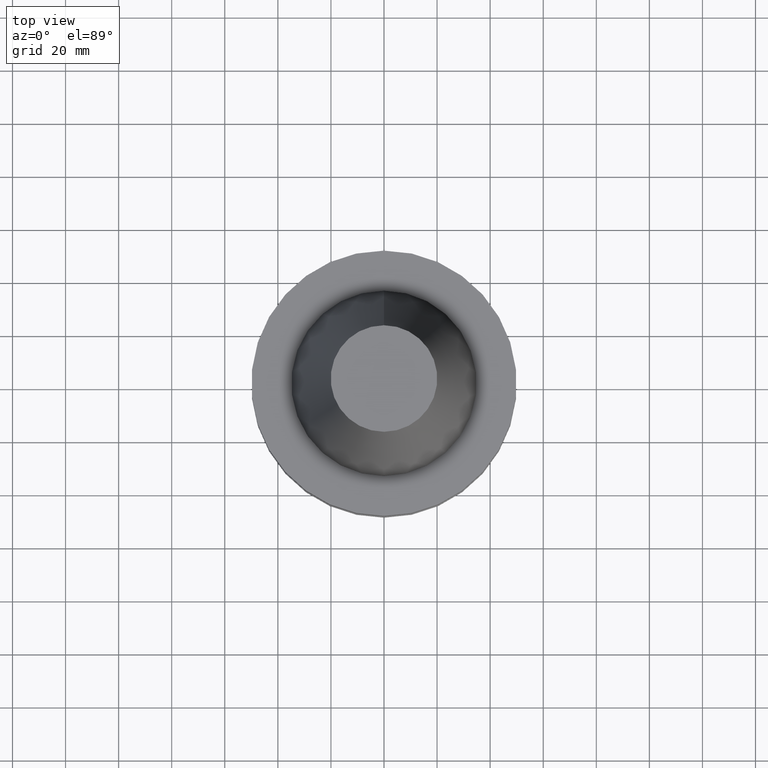
[diagram: clean part render]
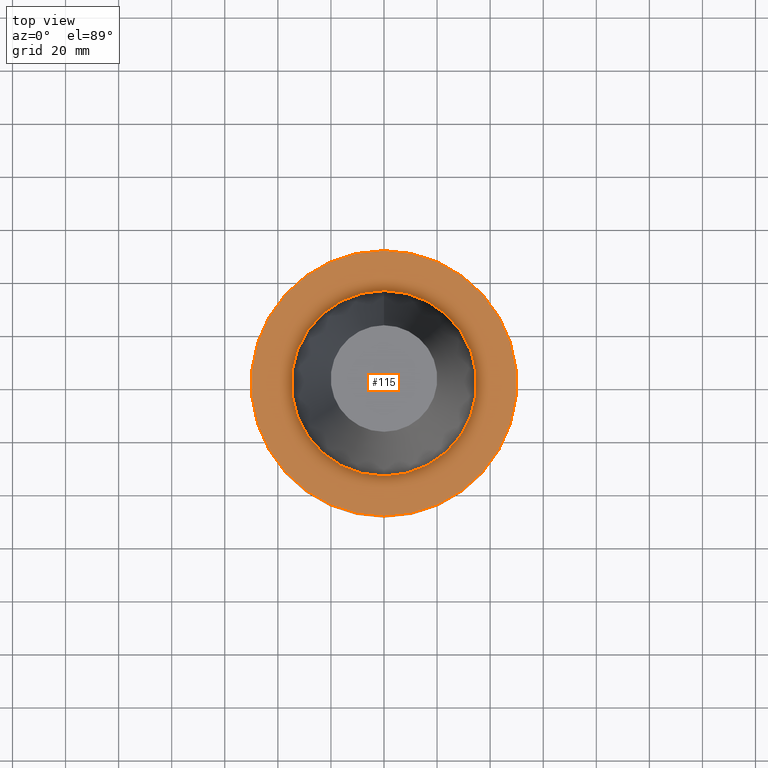
[diagram: same view with one face highlighted and labeled with its STEP entity id]
A machine part, top view. The second image highlights one B-rep face of the part: STEP entity #115.
In plain terms, the highlighted planar face has unit normal (-0, -0, 1).
Its self-contained STEP definition (entity closure, byte-faithful):
#115=ADVANCED_FACE('Unnamed[1]',(#262,#263),#264,.T.);
#122=EDGE_CURVE('Unnamed[1]',#273,#273,#274,.T.);
#158=EDGE_CURVE('Unnamed[1]',#328,#328,#329,.T.);
#262=FACE_BOUND('',#452,.T.);
#263=FACE_OUTER_BOUND('',#453,.T.);
#264=PLANE('',#454);
#273=VERTEX_POINT('',#466);
#274=CIRCLE('',#467,34.925);
#328=VERTEX_POINT('',#534);
#329=CIRCLE('',#535,50.0);
#452=EDGE_LOOP('',(#647));
#453=EDGE_LOOP('',(#648));
#454=AXIS2_PLACEMENT_3D('',#649,#650,#651);
#466=CARTESIAN_POINT('',(9.18485099360511E-017,34.925,-1.5));
#467=AXIS2_PLACEMENT_3D('',#660,#661,#662);
#534=CARTESIAN_POINT('',(9.18485099360509E-017,50.0,-1.49999999999999));
#535=AXIS2_PLACEMENT_3D('',#720,#721,#722);
#647=ORIENTED_EDGE('',*,*,#122,.F.);
#648=ORIENTED_EDGE('',*,*,#158,.T.);
#649=CARTESIAN_POINT('',(9.1848509936051E-017,42.4625,-1.49999999999999));
#650=DIRECTION('',(-6.12323399573677E-017,-1.22464679914735E-016,1.0));
#651=DIRECTION('',(-1.23259516440783E-032,1.0,1.22464679914735E-016));
#660=CARTESIAN_POINT('',(9.18485099360515E-017,1.46024574888838E-014,-1.5));
#661=DIRECTION('',(-6.12323399573677E-017,-1.52619998477336E-017,1.0));
#662=DIRECTION('',(-5.76168069387474E-033,1.0,1.52619998477336E-017));
#720=CARTESIAN_POINT('',(9.18485099360515E-017,1.46024574888838E-014,-1.5));
#721=DIRECTION('',(-6.12323399573677E-017,-1.52619998477336E-017,1.0));
#722=DIRECTION('',(-5.76168069387474E-033,1.0,1.52619998477336E-017));